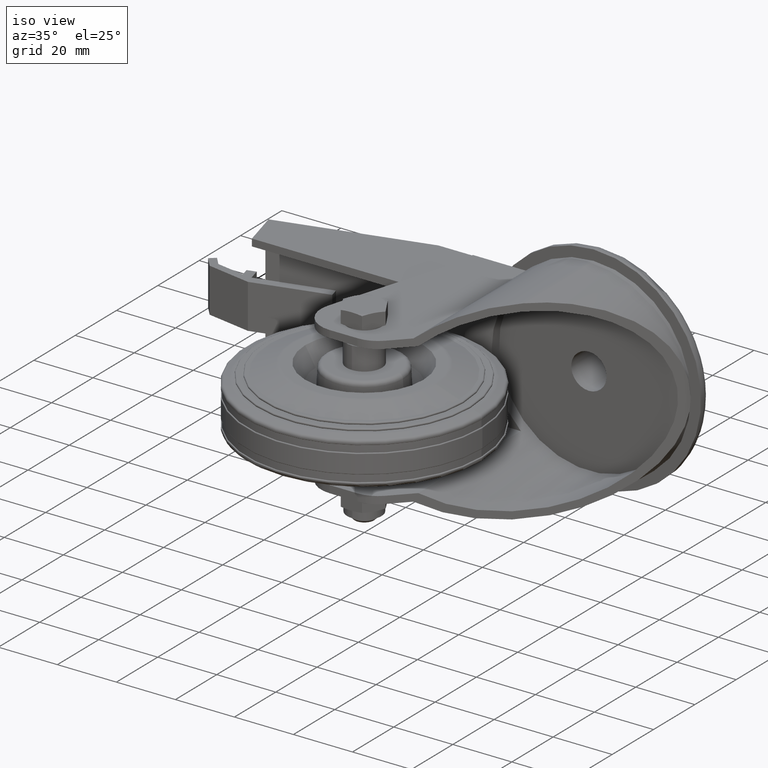
[diagram: clean part render]
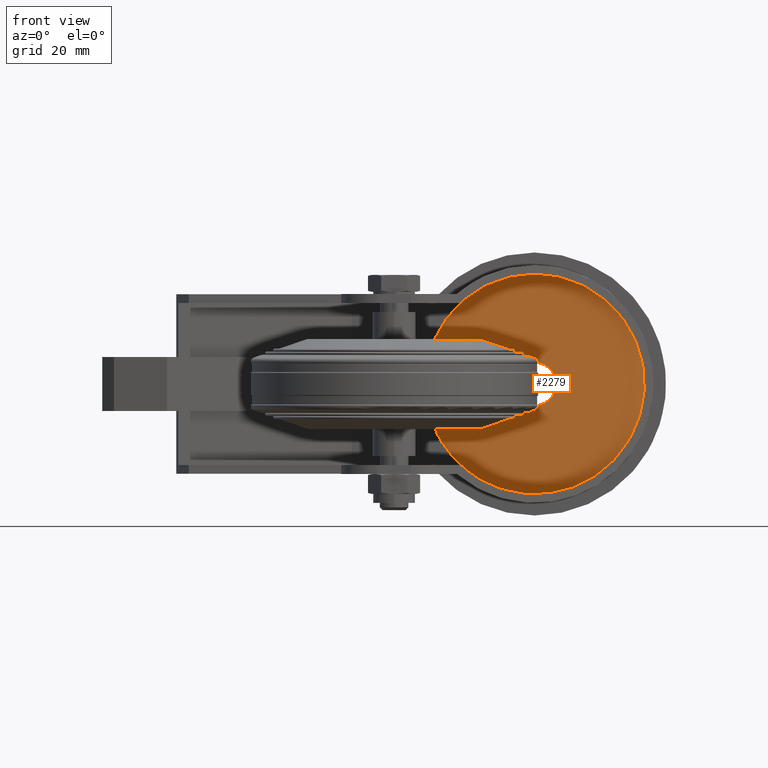
[diagram: tour spotlight — one face highlighted and labeled with its STEP entity id]
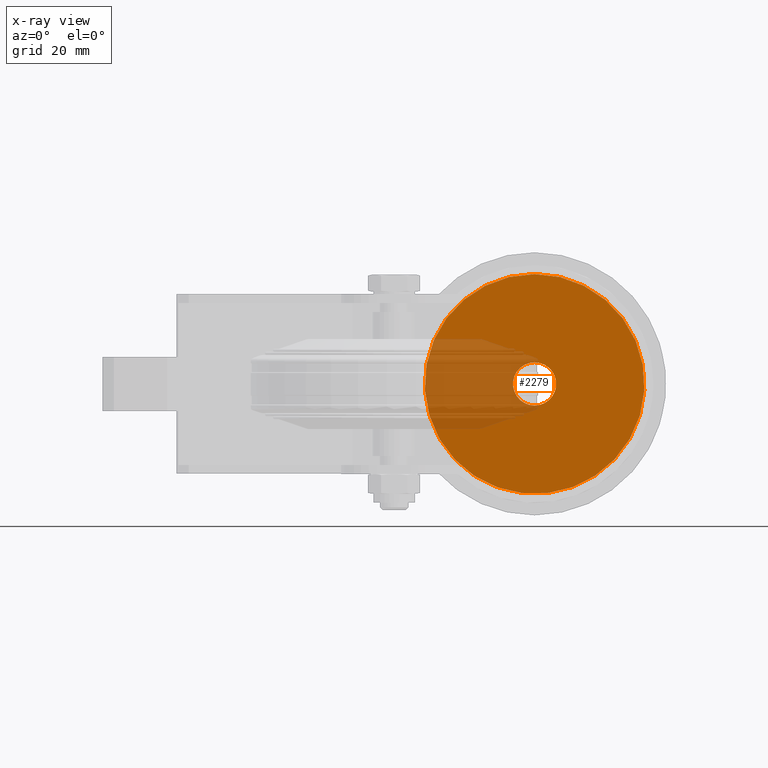
[diagram: x-ray of the same camera — body ghosted, this tour face saturated]
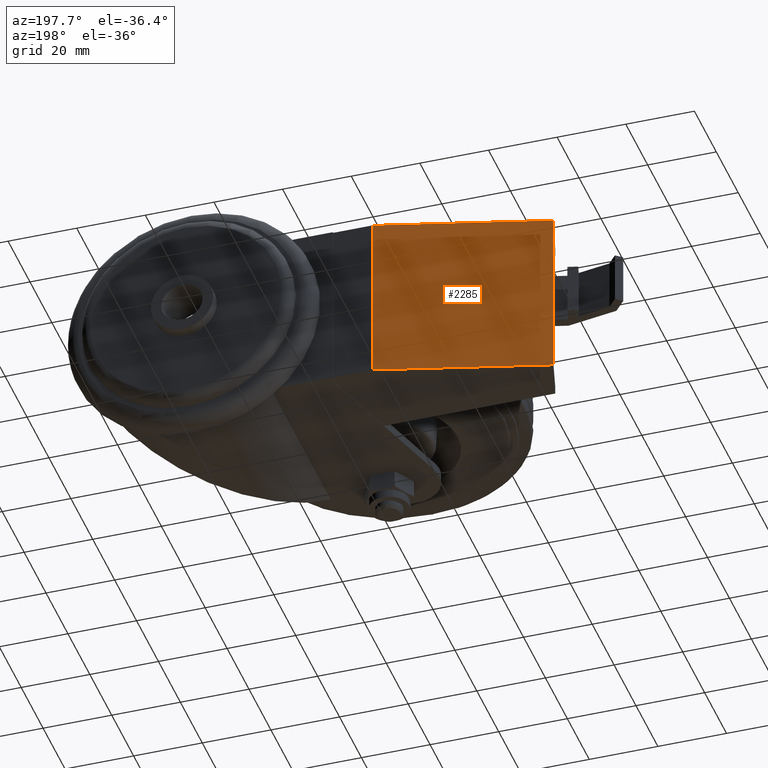
[diagram: tour spotlight — one face highlighted and labeled with its STEP entity id]
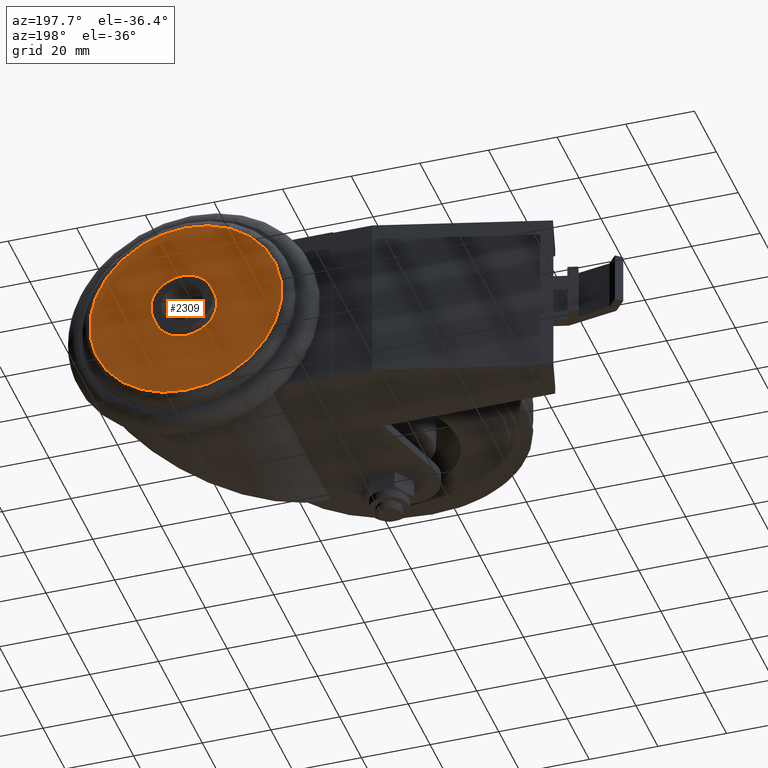
[diagram: tour spotlight — one face highlighted and labeled with its STEP entity id]
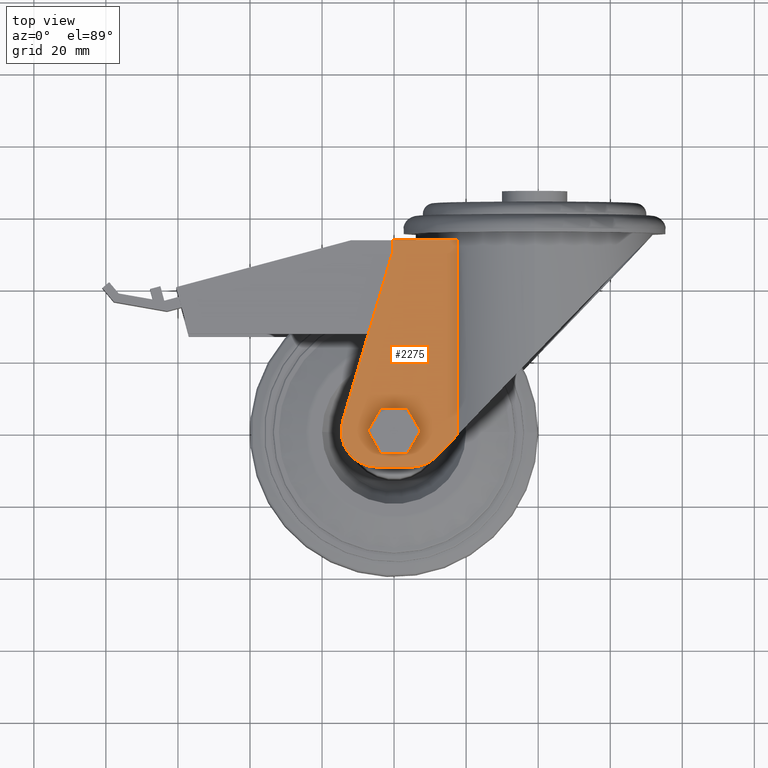
[diagram: tour spotlight — one face highlighted and labeled with its STEP entity id]
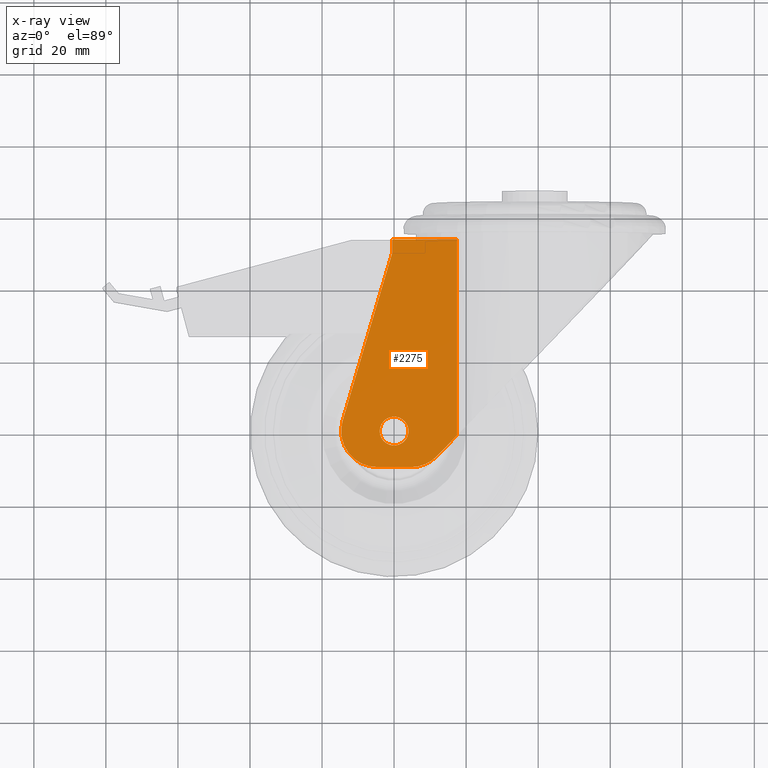
[diagram: x-ray of the same camera — body ghosted, this tour face saturated]
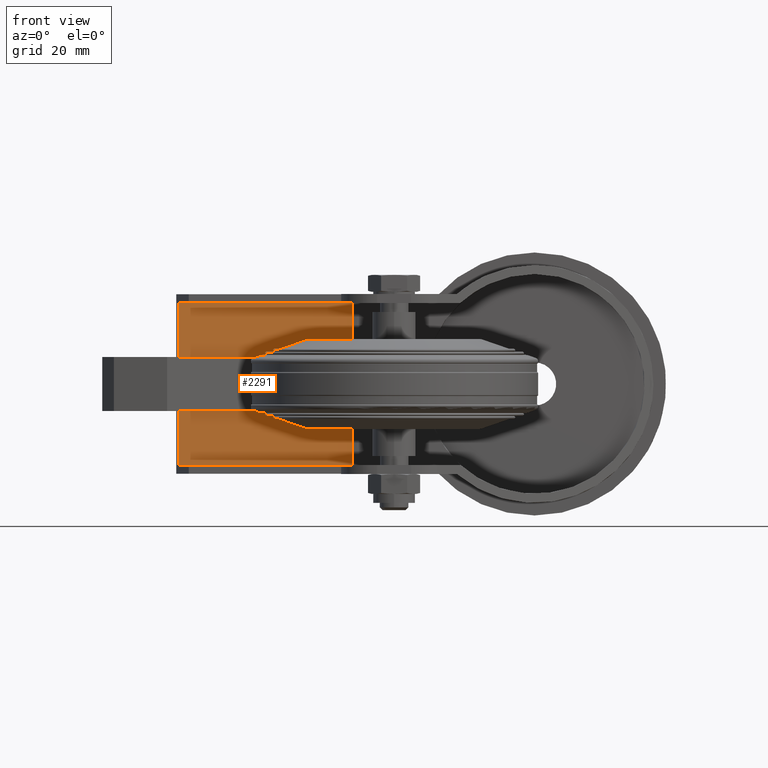
[diagram: tour spotlight — one face highlighted and labeled with its STEP entity id]
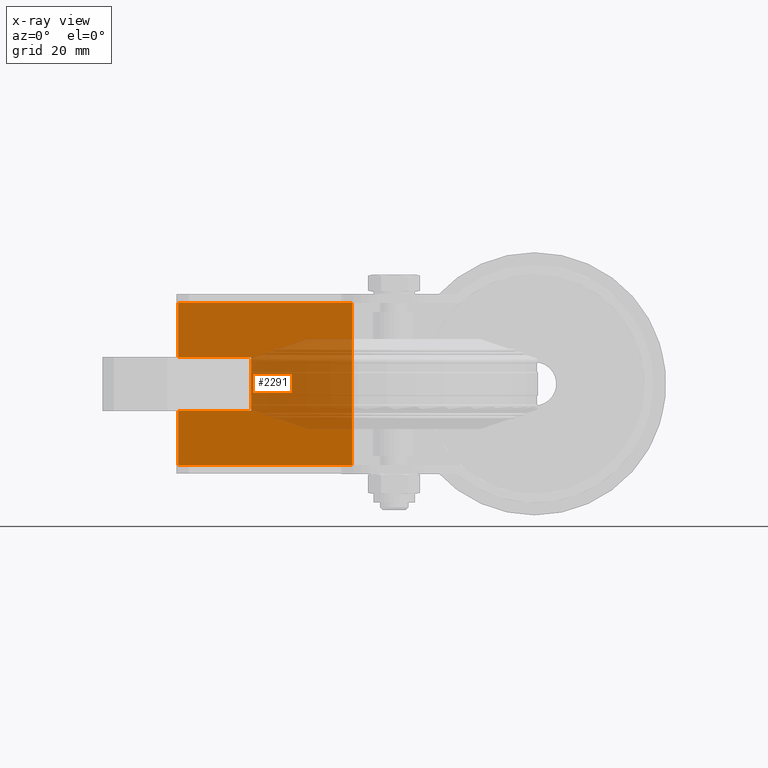
[diagram: x-ray of the same camera — body ghosted, this tour face saturated]
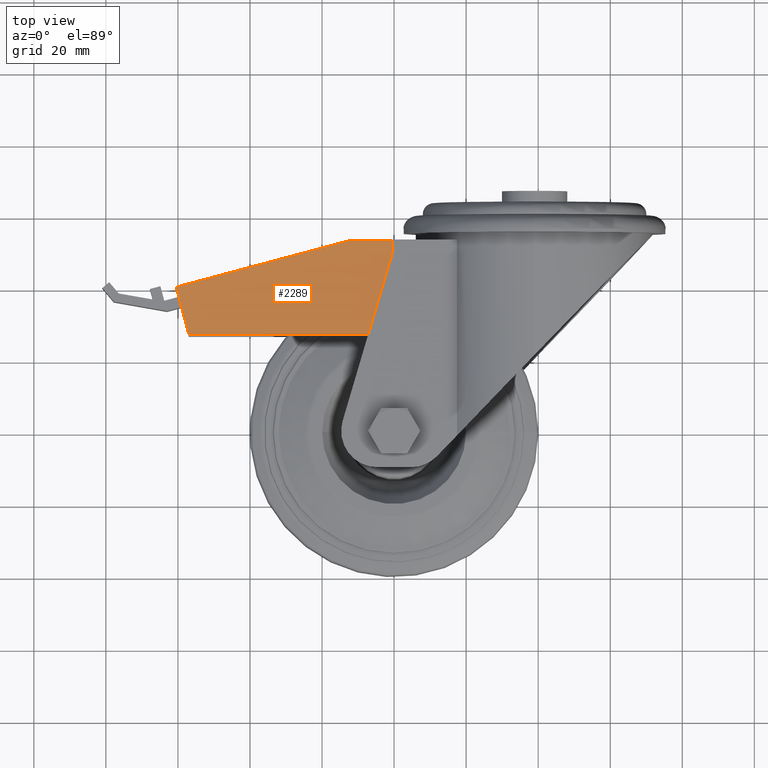
[diagram: tour spotlight — one face highlighted and labeled with its STEP entity id]
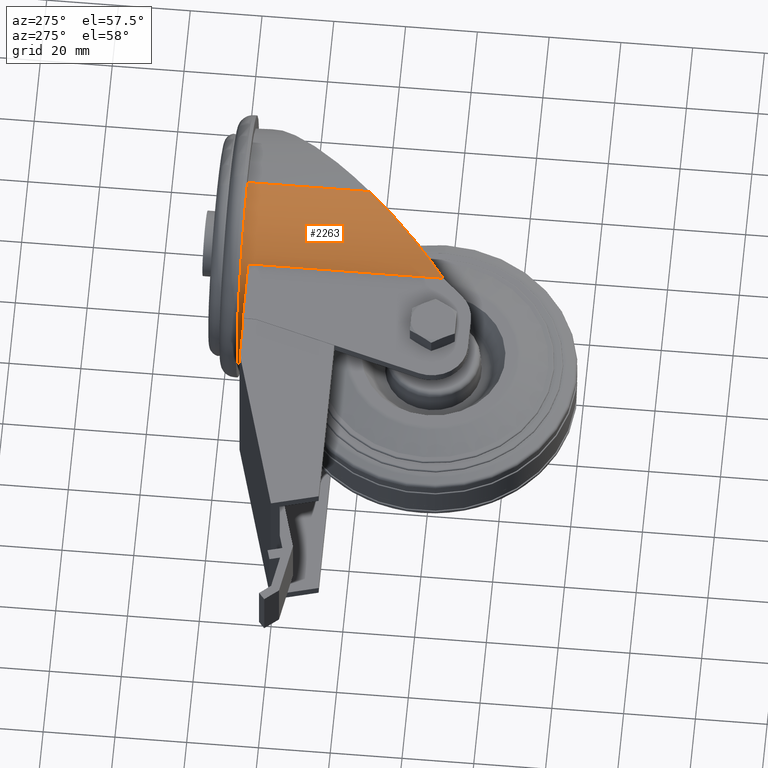
[diagram: tour spotlight — one face highlighted and labeled with its STEP entity id]
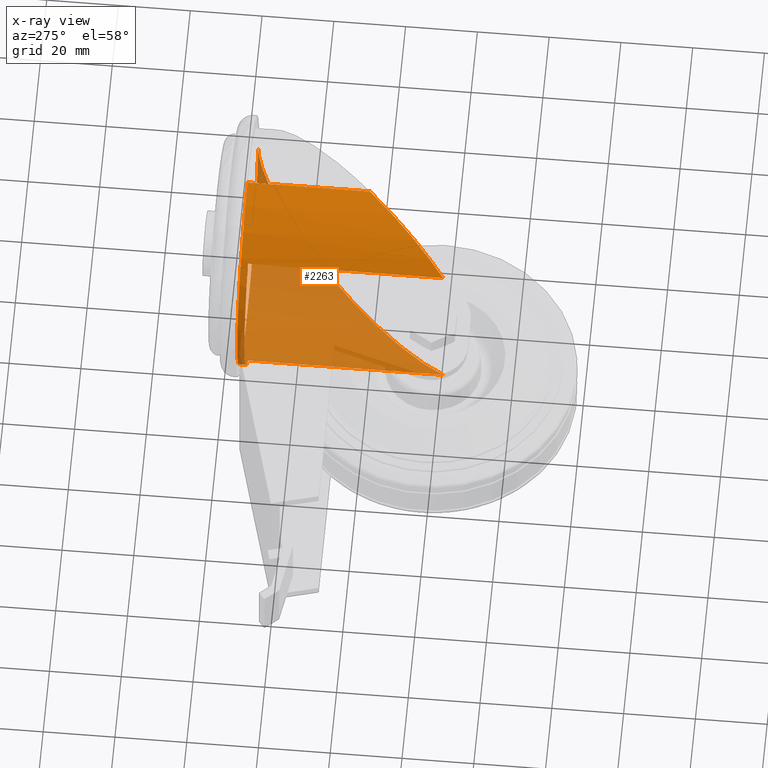
[diagram: x-ray of the same camera — body ghosted, this tour face saturated]
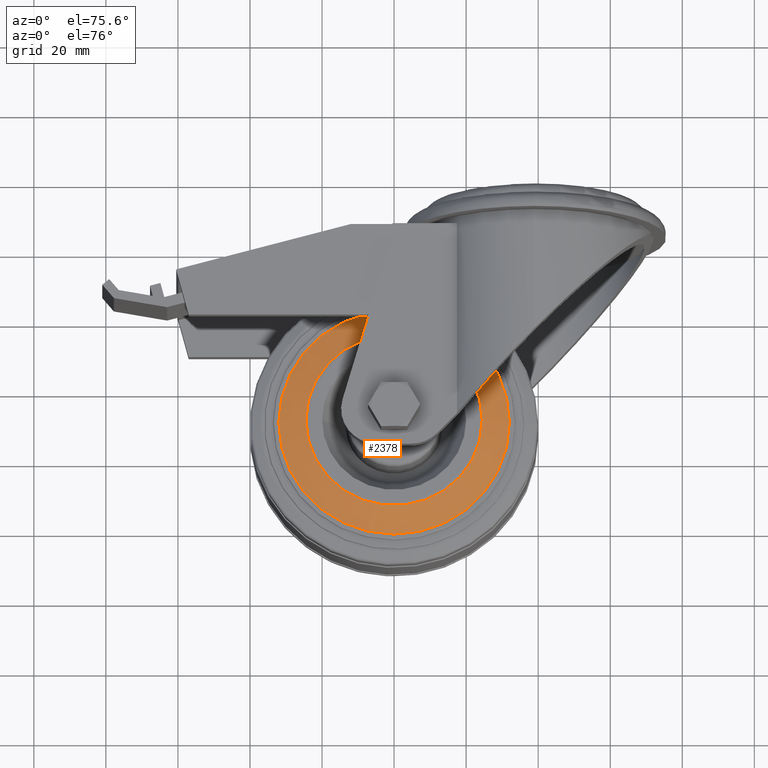
[diagram: tour spotlight — one face highlighted and labeled with its STEP entity id]
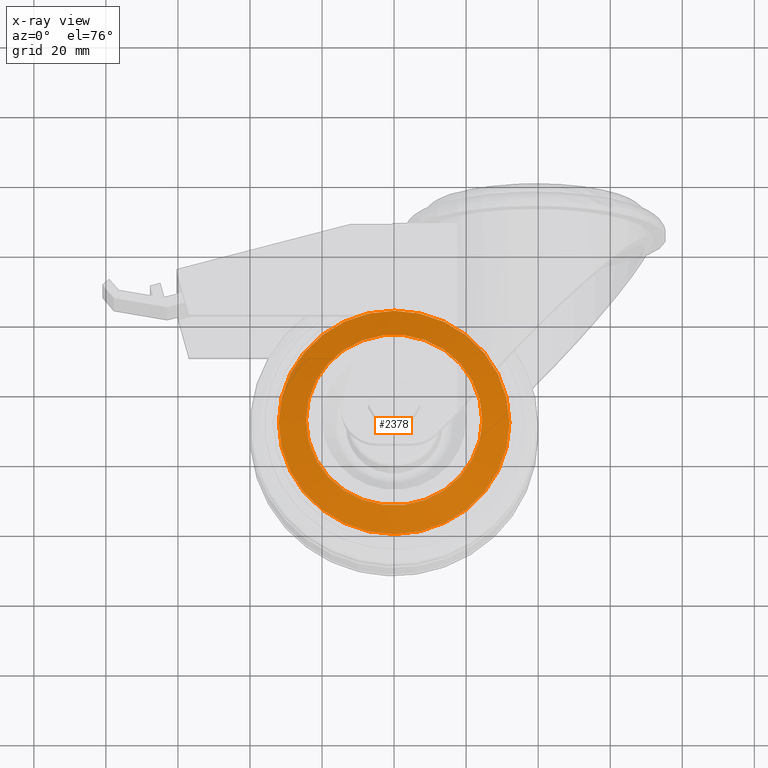
[diagram: x-ray of the same camera — body ghosted, this tour face saturated]
A machine part: a face-by-face anatomy tour. The part has 151 B-rep faces; the first image is the clean iso view, then the 8 largest visible faces are spotlighted one at a time (largest first), each with its STEP entity span.

Face 1 — front view, entity #2279. An x-ray twin of the same camera follows (body ghosted, this face saturated) — the face is partly hidden behind the body. In plain terms, the highlighted planar face has unit normal (0, -1, 0).
Definition (entity closure, byte-faithful):
#182=FACE_BOUND('',#452,.T.);
#218=PLANE('',#2561);
#298=FACE_OUTER_BOUND('',#451,.T.);
#451=EDGE_LOOP('',(#1674));
#452=EDGE_LOOP('',(#1675));
#622=CIRCLE('',#2553,30.5);
#626=CIRCLE('',#2562,6.);
#1074=VERTEX_POINT('',#3656);
#1083=VERTEX_POINT('',#3685);
#1292=EDGE_CURVE('',#1074,#1074,#622,.T.);
#1307=EDGE_CURVE('',#1083,#1083,#626,.F.);
#1674=ORIENTED_EDGE('',*,*,#1292,.T.);
#1675=ORIENTED_EDGE('',*,*,#1307,.T.);
#2279=ADVANCED_FACE('',(#298,#182),#218,.T.);
#2553=AXIS2_PLACEMENT_3D('',#3657,#2913,#2914);
#2561=AXIS2_PLACEMENT_3D('',#3684,#2940,#2941);
#2562=AXIS2_PLACEMENT_3D('',#3686,#2942,#2943);
#2913=DIRECTION('center_axis',(0.,-1.,0.));
#2914=DIRECTION('ref_axis',(0.,0.,-1.));
#2940=DIRECTION('center_axis',(0.,-1.,0.));
#2941=DIRECTION('ref_axis',(0.,0.,-1.));
#2942=DIRECTION('center_axis',(0.,-1.,0.));
#2943=DIRECTION('ref_axis',(0.,0.,-1.));
#3656=CARTESIAN_POINT('',(39.,53.,30.5));
#3657=CARTESIAN_POINT('Origin',(39.,53.,0.));
#3684=CARTESIAN_POINT('Origin',(39.,53.,0.));
#3685=CARTESIAN_POINT('',(39.,53.,6.));
#3686=CARTESIAN_POINT('Origin',(39.,53.,0.));

Face 2 — auxiliary view, entity #2285. In plain terms, the highlighted planar face has unit normal (0.2588, -0.9659, 0).
Definition (entity closure, byte-faithful):
#222=PLANE('',#2570);
#304=FACE_OUTER_BOUND('',#460,.T.);
#460=EDGE_LOOP('',(#1714,#1715,#1716,#1717));
#807=LINE('',#3722,#951);
#808=LINE('',#3724,#952);
#809=LINE('',#3726,#953);
#810=LINE('',#3727,#954);
#951=VECTOR('',#2974,1000.);
#952=VECTOR('',#2975,1000.);
#953=VECTOR('',#2976,1000.);
#954=VECTOR('',#2977,1000.);
#1095=VERTEX_POINT('',#3720);
#1096=VERTEX_POINT('',#3721);
#1097=VERTEX_POINT('',#3723);
#1098=VERTEX_POINT('',#3725);
#1324=EDGE_CURVE('',#1095,#1096,#807,.T.);
#1325=EDGE_CURVE('',#1097,#1096,#808,.T.);
#1326=EDGE_CURVE('',#1098,#1097,#809,.T.);
#1327=EDGE_CURVE('',#1098,#1095,#810,.T.);
#1714=ORIENTED_EDGE('',*,*,#1324,.T.);
#1715=ORIENTED_EDGE('',*,*,#1325,.F.);
#1716=ORIENTED_EDGE('',*,*,#1326,.F.);
#1717=ORIENTED_EDGE('',*,*,#1327,.T.);
#2285=ADVANCED_FACE('',(#304),#222,.F.);
#2570=AXIS2_PLACEMENT_3D('',#3719,#2972,#2973);
#2972=DIRECTION('center_axis',(0.258819045102521,-0.965925826289068,0.));
#2973=DIRECTION('ref_axis',(0.965925826289068,0.258819045102521,0.));
#2974=DIRECTION('',(-0.965925826289068,-0.258819045102521,0.));
#2975=DIRECTION('',(0.,0.,-1.));
#2976=DIRECTION('',(-0.965925826289068,-0.258819045102521,0.));
#2977=DIRECTION('',(0.,0.,-1.));
#3719=CARTESIAN_POINT('Origin',(-11.9666790032092,53.,24.9));
#3720=CARTESIAN_POINT('',(-11.9666790032092,53.,-24.9));
#3721=CARTESIAN_POINT('',(-60.4833395016046,40.,-24.9));
#3722=CARTESIAN_POINT('',(-11.9666790032092,53.,-24.9));
#3723=CARTESIAN_POINT('',(-60.4833395016046,40.,24.9));
#3724=CARTESIAN_POINT('',(-60.4833395016046,40.,24.9));
#3725=CARTESIAN_POINT('',(-11.9666790032092,53.,24.9));
#3726=CARTESIAN_POINT('',(-11.9666790032092,53.,24.9));
#3727=CARTESIAN_POINT('',(-11.9666790032092,53.,24.9));

Face 3 — auxiliary view, entity #2309. In plain terms, the highlighted planar face has unit normal (0, -1, 0).
Definition (entity closure, byte-faithful):
#186=FACE_BOUND('',#486,.T.);
#245=PLANE('',#2597);
#328=FACE_OUTER_BOUND('',#485,.T.);
#485=EDGE_LOOP('',(#1838));
#486=EDGE_LOOP('',(#1839));
#631=CIRCLE('',#2596,9.125);
#632=CIRCLE('',#2598,28.025);
#1126=VERTEX_POINT('',#3826);
#1127=VERTEX_POINT('',#3830);
#1376=EDGE_CURVE('',#1126,#1126,#631,.T.);
#1378=EDGE_CURVE('',#1127,#1127,#632,.T.);
#1838=ORIENTED_EDGE('',*,*,#1378,.F.);
#1839=ORIENTED_EDGE('',*,*,#1376,.T.);
#2309=ADVANCED_FACE('',(#328,#186),#245,.F.);
#2596=AXIS2_PLACEMENT_3D('',#3827,#3074,#3075);
#2597=AXIS2_PLACEMENT_3D('',#3829,#3077,#3078);
#2598=AXIS2_PLACEMENT_3D('',#3831,#3079,#3080);
#3074=DIRECTION('center_axis',(0.,-1.,0.));
#3075=DIRECTION('ref_axis',(0.,0.,-1.));
#3077=DIRECTION('center_axis',(0.,-1.,0.));
#3078=DIRECTION('ref_axis',(0.,0.,-1.));
#3079=DIRECTION('center_axis',(0.,-1.,0.));
#3080=DIRECTION('ref_axis',(0.,0.,-1.));
#3826=CARTESIAN_POINT('',(39.,63.7,9.125));
#3827=CARTESIAN_POINT('Origin',(39.,63.7,0.));
#3829=CARTESIAN_POINT('Origin',(48.125,63.7,0.));
#3830=CARTESIAN_POINT('',(39.,63.7,28.025));
#3831=CARTESIAN_POINT('Origin',(39.,63.7,0.));

Face 4 — top view, entity #2275. An x-ray twin of the same camera follows (body ghosted, this face saturated) — the face is partly hidden behind the body. In plain terms, the highlighted planar face has unit normal (0, 0, 1).
Definition (entity closure, byte-faithful):
#180=FACE_BOUND('',#446,.T.);
#214=PLANE('',#2555);
#294=FACE_OUTER_BOUND('',#445,.T.);
#445=EDGE_LOOP('',(#1644,#1645,#1646,#1647,#1648,#1649,#1650,#1651));
#446=EDGE_LOOP('',(#1652));
#615=CIRCLE('',#2537,10.);
#619=CIRCLE('',#2548,10.);
#624=CIRCLE('',#2556,4.);
#752=LINE('',#3575,#896);
#761=LINE('',#3597,#905);
#775=LINE('',#3636,#919);
#778=LINE('',#3642,#922);
#785=LINE('',#3666,#929);
#786=LINE('',#3667,#930);
#896=VECTOR('',#2839,1000.);
#905=VECTOR('',#2854,1000.);
#919=VECTOR('',#2888,1000.);
#922=VECTOR('',#2893,1000.);
#929=VECTOR('',#2922,1000.);
#930=VECTOR('',#2923,1000.);
#1043=VERTEX_POINT('',#3572);
#1044=VERTEX_POINT('',#3574);
#1053=VERTEX_POINT('',#3594);
#1054=VERTEX_POINT('',#3596);
#1061=VERTEX_POINT('',#3613);
#1062=VERTEX_POINT('',#3615);
#1070=VERTEX_POINT('',#3638);
#1077=VERTEX_POINT('',#3665);
#1078=VERTEX_POINT('',#3668);
#1251=EDGE_CURVE('',#1043,#1044,#752,.T.);
#1261=EDGE_CURVE('',#1054,#1053,#761,.T.);
#1270=EDGE_CURVE('',#1061,#1062,#615,.F.);
#1281=EDGE_CURVE('',#1061,#1044,#775,.T.);
#1284=EDGE_CURVE('',#1070,#1062,#778,.T.);
#1289=EDGE_CURVE('',#1070,#1053,#619,.F.);
#1297=EDGE_CURVE('',#1043,#1077,#785,.T.);
#1298=EDGE_CURVE('',#1077,#1054,#786,.T.);
#1299=EDGE_CURVE('',#1078,#1078,#624,.F.);
#1644=ORIENTED_EDGE('',*,*,#1270,.F.);
#1645=ORIENTED_EDGE('',*,*,#1281,.T.);
#1646=ORIENTED_EDGE('',*,*,#1251,.F.);
#1647=ORIENTED_EDGE('',*,*,#1297,.T.);
#1648=ORIENTED_EDGE('',*,*,#1298,.T.);
#1649=ORIENTED_EDGE('',*,*,#1261,.T.);
#1650=ORIENTED_EDGE('',*,*,#1289,.F.);
#1651=ORIENTED_EDGE('',*,*,#1284,.T.);
#1652=ORIENTED_EDGE('',*,*,#1299,.T.);
#2275=ADVANCED_FACE('',(#294,#180),#214,.T.);
#2537=AXIS2_PLACEMENT_3D('',#3616,#2868,#2869);
#2548=AXIS2_PLACEMENT_3D('',#3651,#2903,#2904);
#2555=AXIS2_PLACEMENT_3D('',#3664,#2920,#2921);
#2556=AXIS2_PLACEMENT_3D('',#3669,#2924,#2925);
#2839=DIRECTION('',(0.,-1.,0.));
#2854=DIRECTION('',(-0.283390294519664,-0.959004661600796,0.));
#2868=DIRECTION('center_axis',(0.,0.,1.));
#2869=DIRECTION('ref_axis',(1.,0.,0.));
#2888=DIRECTION('',(0.69521081600556,0.718805899606343,0.));
#2893=DIRECTION('',(1.,0.,0.));
#2903=DIRECTION('center_axis',(0.,0.,1.));
#2904=DIRECTION('ref_axis',(1.,0.,0.));
#2920=DIRECTION('center_axis',(0.,0.,1.));
#2921=DIRECTION('ref_axis',(1.,0.,0.));
#2922=DIRECTION('',(-1.,0.,0.));
#2923=DIRECTION('',(0.,-1.,0.));
#2924=DIRECTION('center_axis',(0.,0.,1.));
#2925=DIRECTION('ref_axis',(1.,0.,0.));
#3572=CARTESIAN_POINT('',(17.459340771462,53.2,25.));
#3574=CARTESIAN_POINT('',(17.459340771462,-1.19174005828292,25.));
#3575=CARTESIAN_POINT('',(17.459340771462,-10.,25.));
#3594=CARTESIAN_POINT('',(-14.290046616008,2.83390294519664,25.));
#3596=CARTESIAN_POINT('',(-0.5,49.5,25.));
#3597=CARTESIAN_POINT('',(-13.9125893385766,4.1112342286315,25.));
#3613=CARTESIAN_POINT('',(11.8880589960634,-6.95210816005559,25.));
#3615=CARTESIAN_POINT('',(4.69999999999999,-10.,25.));
#3616=CARTESIAN_POINT('Origin',(4.69999999999999,6.93889390390723E-15,25.));
#3636=CARTESIAN_POINT('',(9.61646402621518,-9.30079984932579,25.));
#3638=CARTESIAN_POINT('',(-4.7,-10.,25.));
#3642=CARTESIAN_POINT('',(0.,-10.,25.));
#3651=CARTESIAN_POINT('Origin',(-4.7,1.73472347597681E-15,25.));
#3664=CARTESIAN_POINT('Origin',(0.,0.,25.));
#3665=CARTESIAN_POINT('',(-0.5,53.2,25.));
#3666=CARTESIAN_POINT('',(30.,53.2,25.));
#3667=CARTESIAN_POINT('',(-0.5,0.,25.));
#3668=CARTESIAN_POINT('',(4.,0.,25.));
#3669=CARTESIAN_POINT('Origin',(0.,0.,25.));

Face 5 — front view, entity #2291. An x-ray twin of the same camera follows (body ghosted, this face saturated) — the face is partly hidden behind the body. In plain terms, the highlighted planar face has unit normal (0.2588, -0.9659, 0).
Definition (entity closure, byte-faithful):
#228=PLANE('',#2576);
#310=FACE_OUTER_BOUND('',#466,.T.);
#466=EDGE_LOOP('',(#1748,#1749,#1750,#1751,#1752,#1753,#1754,#1755));
#795=LINE('',#3693,#939);
#802=LINE('',#3709,#946);
#811=LINE('',#3730,#955);
#815=LINE('',#3736,#959);
#820=LINE('',#3747,#964);
#821=LINE('',#3749,#965);
#822=LINE('',#3750,#966);
#823=LINE('',#3751,#967);
#939=VECTOR('',#2948,1000.);
#946=VECTOR('',#2959,1000.);
#955=VECTOR('',#2980,1000.);
#959=VECTOR('',#2984,1000.);
#964=VECTOR('',#2999,1000.);
#965=VECTOR('',#3000,1000.);
#966=VECTOR('',#3001,1000.);
#967=VECTOR('',#3002,1000.);
#1085=VERTEX_POINT('',#3690);
#1086=VERTEX_POINT('',#3692);
#1092=VERTEX_POINT('',#3706);
#1093=VERTEX_POINT('',#3708);
#1099=VERTEX_POINT('',#3729);
#1101=VERTEX_POINT('',#3735);
#1102=VERTEX_POINT('',#3746);
#1103=VERTEX_POINT('',#3748);
#1310=EDGE_CURVE('',#1086,#1085,#795,.T.);
#1318=EDGE_CURVE('',#1092,#1093,#802,.T.);
#1328=EDGE_CURVE('',#1085,#1099,#811,.T.);
#1332=EDGE_CURVE('',#1101,#1093,#815,.T.);
#1337=EDGE_CURVE('',#1102,#1099,#820,.T.);
#1338=EDGE_CURVE('',#1102,#1103,#821,.T.);
#1339=EDGE_CURVE('',#1103,#1101,#822,.T.);
#1340=EDGE_CURVE('',#1086,#1092,#823,.T.);
#1748=ORIENTED_EDGE('',*,*,#1337,.F.);
#1749=ORIENTED_EDGE('',*,*,#1338,.T.);
#1750=ORIENTED_EDGE('',*,*,#1339,.T.);
#1751=ORIENTED_EDGE('',*,*,#1332,.T.);
#1752=ORIENTED_EDGE('',*,*,#1318,.F.);
#1753=ORIENTED_EDGE('',*,*,#1340,.F.);
#1754=ORIENTED_EDGE('',*,*,#1310,.T.);
#1755=ORIENTED_EDGE('',*,*,#1328,.T.);
#2291=ADVANCED_FACE('',(#310),#228,.T.);
#2576=AXIS2_PLACEMENT_3D('',#3745,#2997,#2998);
#2948=DIRECTION('',(-0.965925826289068,-0.258819045102521,0.));
#2959=DIRECTION('',(-0.965925826289068,-0.258819045102521,0.));
#2980=DIRECTION('',(0.,0.,-1.));
#2984=DIRECTION('',(0.,0.,-1.));
#2997=DIRECTION('center_axis',(0.258819045102521,-0.965925826289068,0.));
#2998=DIRECTION('ref_axis',(0.965925826289068,0.258819045102521,0.));
#2999=DIRECTION('',(-0.965925826289068,-0.258819045102521,0.));
#3000=DIRECTION('',(0.,0.,-1.));
#3001=DIRECTION('',(-0.965925826289068,-0.258819045102521,0.));
#3002=DIRECTION('',(0.,0.,-1.));
#3690=CARTESIAN_POINT('',(-59.8362918888483,37.5851854342773,22.5));
#3692=CARTESIAN_POINT('',(-11.6375477592407,50.5,22.5));
#3693=CARTESIAN_POINT('',(-11.6375477592407,50.5,22.5));
#3706=CARTESIAN_POINT('',(-11.6375477592407,50.5,-22.5));
#3708=CARTESIAN_POINT('',(-59.8362918888483,37.5851854342773,-22.5));
#3709=CARTESIAN_POINT('',(-11.6375477592407,50.5,-22.5));
#3729=CARTESIAN_POINT('',(-59.8362918888483,37.5851854342773,7.5));
#3730=CARTESIAN_POINT('',(-59.8362918888483,37.5851854342773,22.5));
#3735=CARTESIAN_POINT('',(-59.8362918888483,37.5851854342773,-7.49999999999999));
#3736=CARTESIAN_POINT('',(-59.8362918888483,37.5851854342773,22.5));
#3745=CARTESIAN_POINT('Origin',(-11.6375477592407,50.5,22.5));
#3746=CARTESIAN_POINT('',(-39.6910307268879,42.9830918939386,7.5));
#3747=CARTESIAN_POINT('',(-39.6910307268879,42.9830918939386,7.5));
#3748=CARTESIAN_POINT('',(-39.6910307268879,42.9830918939386,-7.5));
#3749=CARTESIAN_POINT('',(-39.6910307268879,42.9830918939386,7.5));
#3750=CARTESIAN_POINT('',(-39.6910307268879,42.9830918939386,-7.5));
#3751=CARTESIAN_POINT('',(-11.6375477592407,50.5,22.5));

Face 6 — top view, entity #2289. In plain terms, the highlighted planar face has unit normal (0, 0, 1).
Definition (entity closure, byte-faithful):
#226=PLANE('',#2574);
#308=FACE_OUTER_BOUND('',#464,.T.);
#464=EDGE_LOOP('',(#1736,#1737,#1738,#1739,#1740,#1741));
#757=LINE('',#3589,#901);
#790=LINE('',#3680,#934);
#809=LINE('',#3726,#953);
#813=LINE('',#3733,#957);
#817=LINE('',#3739,#961);
#819=LINE('',#3742,#963);
#901=VECTOR('',#2850,1000.);
#934=VECTOR('',#2937,1000.);
#953=VECTOR('',#2976,1000.);
#957=VECTOR('',#2982,1000.);
#961=VECTOR('',#2988,1000.);
#963=VECTOR('',#2992,1000.);
#1049=VERTEX_POINT('',#3587);
#1050=VERTEX_POINT('',#3588);
#1081=VERTEX_POINT('',#3679);
#1097=VERTEX_POINT('',#3723);
#1098=VERTEX_POINT('',#3725);
#1100=VERTEX_POINT('',#3731);
#1257=EDGE_CURVE('',#1049,#1050,#757,.T.);
#1304=EDGE_CURVE('',#1050,#1081,#790,.T.);
#1326=EDGE_CURVE('',#1098,#1097,#809,.T.);
#1330=EDGE_CURVE('',#1097,#1100,#813,.T.);
#1334=EDGE_CURVE('',#1100,#1049,#817,.T.);
#1336=EDGE_CURVE('',#1081,#1098,#819,.T.);
#1736=ORIENTED_EDGE('',*,*,#1326,.T.);
#1737=ORIENTED_EDGE('',*,*,#1330,.T.);
#1738=ORIENTED_EDGE('',*,*,#1334,.T.);
#1739=ORIENTED_EDGE('',*,*,#1257,.T.);
#1740=ORIENTED_EDGE('',*,*,#1304,.T.);
#1741=ORIENTED_EDGE('',*,*,#1336,.T.);
#2289=ADVANCED_FACE('',(#308),#226,.T.);
#2574=AXIS2_PLACEMENT_3D('',#3743,#2993,#2994);
#2850=DIRECTION('',(0.283390294519664,0.959004661600796,0.));
#2937=DIRECTION('',(0.,1.,0.));
#2976=DIRECTION('',(-0.965925826289068,-0.258819045102521,0.));
#2982=DIRECTION('',(0.258819045102521,-0.965925826289068,0.));
#2988=DIRECTION('',(1.,0.,0.));
#2992=DIRECTION('',(-1.,0.,0.));
#2993=DIRECTION('center_axis',(0.,0.,1.));
#2994=DIRECTION('ref_axis',(1.,0.,0.));
#3587=CARTESIAN_POINT('',(-7.14885363127325,27.,24.9));
#3588=CARTESIAN_POINT('',(-0.5,49.5,24.9));
#3589=CARTESIAN_POINT('',(-7.14885363127326,27.,24.9));
#3679=CARTESIAN_POINT('',(-0.5,53.,24.9));
#3680=CARTESIAN_POINT('',(-0.499999999999998,49.5,24.9));
#3723=CARTESIAN_POINT('',(-60.4833395016046,40.,24.9));
#3725=CARTESIAN_POINT('',(-11.9666790032092,53.,24.9));
#3726=CARTESIAN_POINT('',(-11.9666790032092,53.,24.9));
#3731=CARTESIAN_POINT('',(-57.,27.,24.9));
#3733=CARTESIAN_POINT('',(-60.4833395016046,40.,24.9));
#3739=CARTESIAN_POINT('',(-57.,27.,24.9));
#3742=CARTESIAN_POINT('',(-0.499999999999998,53.,24.9));
#3743=CARTESIAN_POINT('Origin',(0.,0.,24.9));

Face 7 — auxiliary view, entity #2263. An x-ray twin of the same camera follows (body ghosted, this face saturated) — the face is partly hidden behind the body. In plain terms, the highlighted cylindrical surface (partial cylindrical patch) has radius 33 mm, axis along (0, -1, 0).
Definition (entity closure, byte-faithful):
#282=FACE_OUTER_BOUND('',#433,.T.);
#433=EDGE_LOOP('',(#1578,#1579,#1580,#1581,#1582,#1583,#1584));
#612=CIRCLE('',#2528,33.);
#613=CIRCLE('',#2530,33.);
#746=ELLIPSE('',#2529,47.4676159234785,33.);
#747=ELLIPSE('',#2531,47.4676159234785,33.);
#750=LINE('',#3562,#894);
#751=LINE('',#3571,#895);
#752=LINE('',#3575,#896);
#894=VECTOR('',#2825,33.);
#895=VECTOR('',#2836,1000.);
#896=VECTOR('',#2839,1000.);
#1038=VERTEX_POINT('',#3560);
#1039=VERTEX_POINT('',#3561);
#1040=VERTEX_POINT('',#3563);
#1041=VERTEX_POINT('',#3568);
#1042=VERTEX_POINT('',#3570);
#1043=VERTEX_POINT('',#3572);
#1044=VERTEX_POINT('',#3574);
#1244=EDGE_CURVE('',#1038,#1039,#750,.T.);
#1247=EDGE_CURVE('',#1040,#1039,#612,.T.);
#1248=EDGE_CURVE('',#1041,#1040,#746,.T.);
#1249=EDGE_CURVE('',#1042,#1041,#751,.T.);
#1250=EDGE_CURVE('',#1043,#1042,#613,.T.);
#1251=EDGE_CURVE('',#1043,#1044,#752,.T.);
#1252=EDGE_CURVE('',#1038,#1044,#747,.T.);
#1578=ORIENTED_EDGE('',*,*,#1244,.T.);
#1579=ORIENTED_EDGE('',*,*,#1247,.F.);
#1580=ORIENTED_EDGE('',*,*,#1248,.F.);
#1581=ORIENTED_EDGE('',*,*,#1249,.F.);
#1582=ORIENTED_EDGE('',*,*,#1250,.F.);
#1583=ORIENTED_EDGE('',*,*,#1251,.T.);
#1584=ORIENTED_EDGE('',*,*,#1252,.F.);
#2238=CYLINDRICAL_SURFACE('',#2527,33.);
#2263=ADVANCED_FACE('',(#282),#2238,.T.);
#2527=AXIS2_PLACEMENT_3D('',#3566,#2830,#2831);
#2528=AXIS2_PLACEMENT_3D('',#3567,#2832,#2833);
#2529=AXIS2_PLACEMENT_3D('',#3569,#2834,#2835);
#2530=AXIS2_PLACEMENT_3D('',#3573,#2837,#2838);
#2531=AXIS2_PLACEMENT_3D('',#3576,#2840,#2841);
#2825=DIRECTION('',(0.,1.,0.));
#2830=DIRECTION('center_axis',(0.,-1.,0.));
#2831=DIRECTION('ref_axis',(0.,0.,-1.));
#2832=DIRECTION('center_axis',(0.,1.,0.));
#2833=DIRECTION('ref_axis',(0.,0.,1.));
#2834=DIRECTION('center_axis',(0.718805899606343,-0.695210816005559,0.));
#2835=DIRECTION('ref_axis',(-0.695210816005559,-0.718805899606343,0.));
#2836=DIRECTION('',(0.,-1.,0.));
#2837=DIRECTION('center_axis',(0.,-1.,0.));
#2838=DIRECTION('ref_axis',(0.,0.,-1.));
#2839=DIRECTION('',(0.,-1.,0.));
#2840=DIRECTION('center_axis',(0.718805899606343,-0.695210816005559,0.));
#2841=DIRECTION('ref_axis',(-0.695210816005559,-0.718805899606343,0.));
#3560=CARTESIAN_POINT('',(39.,21.0799976339556,33.));
#3561=CARTESIAN_POINT('',(39.,55.2,33.));
#3562=CARTESIAN_POINT('',(39.,-10.,33.));
#3563=CARTESIAN_POINT('',(72.,55.2,0.));
#3566=CARTESIAN_POINT('Origin',(39.,-10.,0.));
#3567=CARTESIAN_POINT('Origin',(39.,55.2,0.));
#3568=CARTESIAN_POINT('',(17.459340771462,-1.19174005828291,-25.));
#3569=CARTESIAN_POINT('Origin',(39.,21.0799976339556,0.));
#3570=CARTESIAN_POINT('',(17.459340771462,53.2,-25.));
#3571=CARTESIAN_POINT('',(17.459340771462,-10.,-25.));
#3572=CARTESIAN_POINT('',(17.459340771462,53.2,25.));
#3573=CARTESIAN_POINT('Origin',(39.,53.2,0.));
#3574=CARTESIAN_POINT('',(17.459340771462,-1.19174005828292,25.));
#3575=CARTESIAN_POINT('',(17.459340771462,-10.,25.));
#3576=CARTESIAN_POINT('Origin',(39.,21.0799976339556,0.));

Face 8 — auxiliary view, entity #2378. An x-ray twin of the same camera follows (body ghosted, this face saturated) — the face is partly hidden behind the body. In plain terms, the highlighted conical surface has half-angle 71 deg.
Definition (entity closure, byte-faithful):
#97=CONICAL_SURFACE('',#2728,32.,1.23918376891597);
#397=FACE_OUTER_BOUND('',#567,.T.);
#567=EDGE_LOOP('',(#2105,#2106,#2107,#2108));
#691=CIRCLE('',#2727,32.);
#692=CIRCLE('',#2729,24.4746766361272);
#882=LINE('',#4208,#1026);
#1026=VECTOR('',#3365,32.);
#1204=VERTEX_POINT('',#4204);
#1205=VERTEX_POINT('',#4207);
#1509=EDGE_CURVE('',#1204,#1204,#691,.T.);
#1510=EDGE_CURVE('',#1204,#1205,#882,.T.);
#1511=EDGE_CURVE('',#1205,#1205,#692,.T.);
#2105=ORIENTED_EDGE('',*,*,#1509,.F.);
#2106=ORIENTED_EDGE('',*,*,#1510,.T.);
#2107=ORIENTED_EDGE('',*,*,#1511,.T.);
#2108=ORIENTED_EDGE('',*,*,#1510,.F.);
#2378=ADVANCED_FACE('',(#397),#97,.T.);
#2727=AXIS2_PLACEMENT_3D('',#4205,#3361,#3362);
#2728=AXIS2_PLACEMENT_3D('',#4206,#3363,#3364);
#2729=AXIS2_PLACEMENT_3D('',#4209,#3366,#3367);
#3361=DIRECTION('center_axis',(6.12323399573677E-17,0.,-1.));
#3362=DIRECTION('ref_axis',(-1.,0.,-6.12323399573677E-17));
#3363=DIRECTION('center_axis',(6.12323399573677E-17,0.,-1.));
#3364=DIRECTION('ref_axis',(-1.,0.,-6.12323399573677E-17));
#3365=DIRECTION('',(-0.945518575599316,1.15792629714207E-16,0.32556815445716));
#3366=DIRECTION('center_axis',(6.12323399573677E-17,0.,-1.));
#3367=DIRECTION('ref_axis',(-1.,0.,-6.12323399573677E-17));
#4204=CARTESIAN_POINT('',(32.,-3.91886975727153E-15,9.74537909368268));
#4205=CARTESIAN_POINT('Origin',(-5.96732365677802E-16,0.,9.74537909368268));
#4206=CARTESIAN_POINT('Origin',(-5.96732365677802E-16,0.,9.74537909368268));
#4207=CARTESIAN_POINT('',(24.4746766361272,-2.99728344025997E-15,12.336555726798));
#4208=CARTESIAN_POINT('',(32.,-3.91886975727153E-15,9.74537909368268));
#4209=CARTESIAN_POINT('Origin',(-7.55396174166303E-16,0.,12.3365557267979));